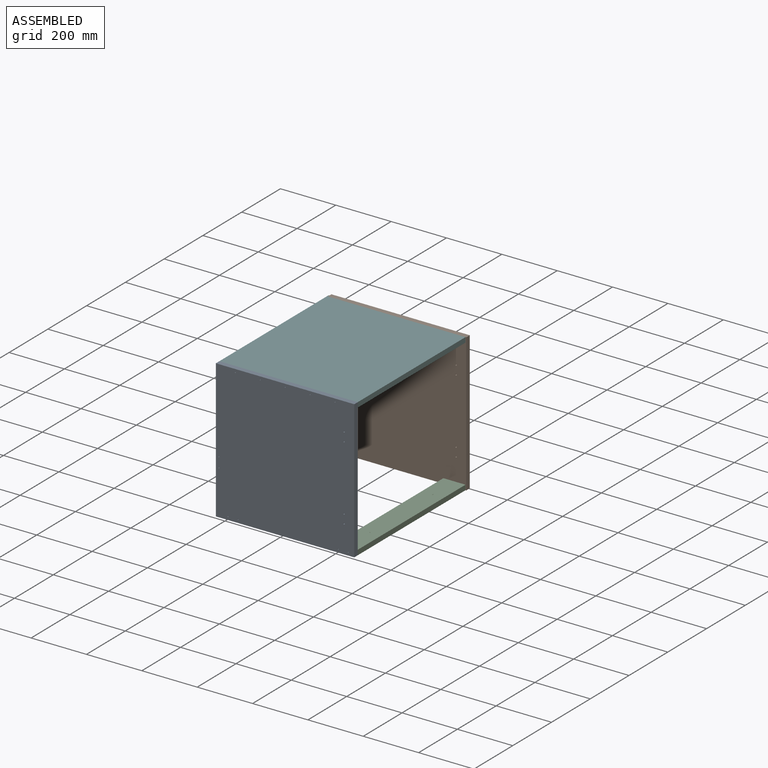
[diagram: assembled view]
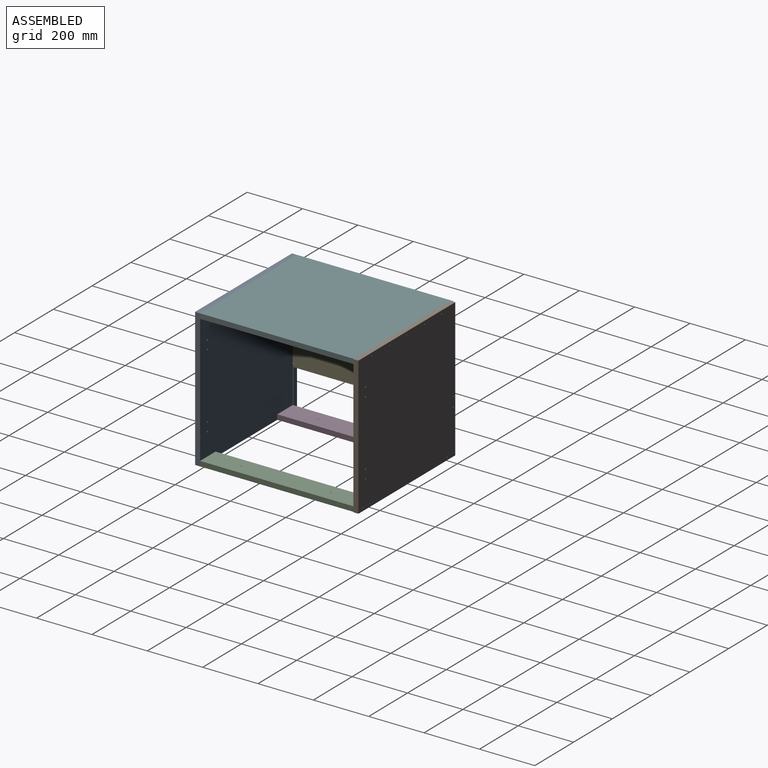
[diagram: assembled view, second angle]
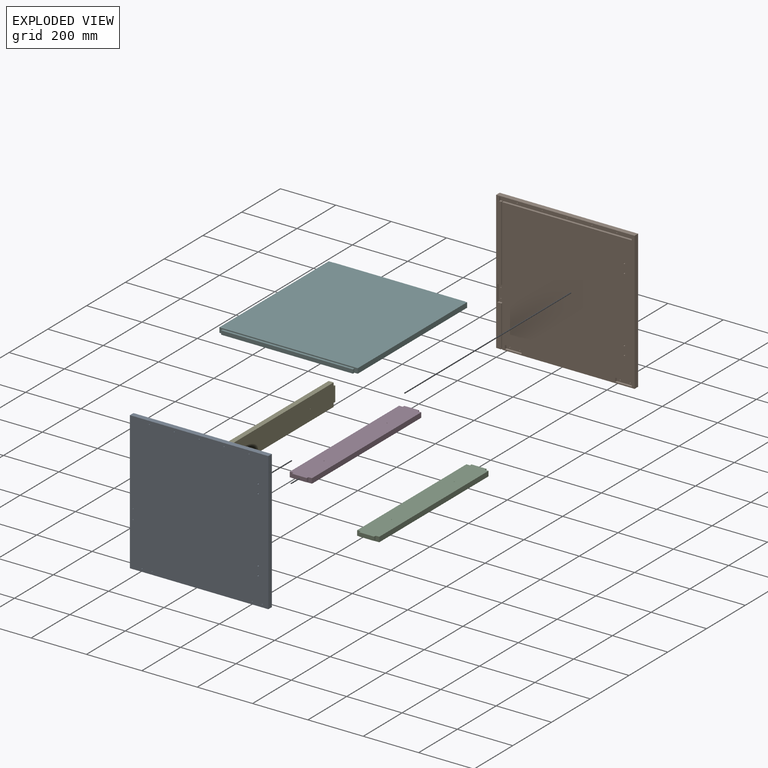
[diagram: exploded view]
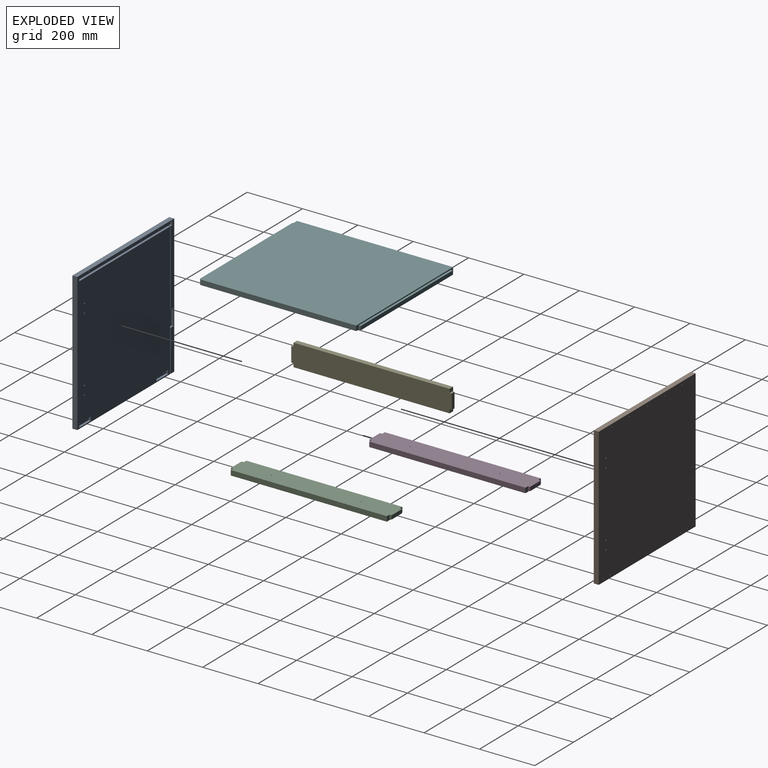
[diagram: exploded view, second angle]
ASSEMBLY  parts=6 mates=5
PART A: 43 faces, bbox 18x500x500 mm
  f0: plane 496x486mm, normal (1,0,0), area 9238.9mm2, adj f3,f6,f7,f8,f9,f10,f11,f21
  f1: plane 60x14mm, normal (1,0,0), area 823.9mm2, adj f12,f13,f26,f27,f28,f41
  f2: plane 60x14mm, normal (1,0,0), area 823.9mm2, adj f14,f15,f23,f24,f25,f40
  f3: plane 500x18mm, normal (0,0,1), area 8971.2mm2, adj f0,f4,f20,f22,f29,f39,f42
  f4: plane 500x18mm, normal (0,-1,0), area 9000mm2, adj f3,f5,f22,f42
  f5: plane 500x18mm, normal (0,0,-1), area 9000mm2, adj f4,f20,f22,f42
  f6: cylinder r=1.6mm len=10mm, axis (1,0,0), area 100.5mm2, adj f0,f22
  f7: cylinder r=1.6mm len=10mm, axis (1,0,0), area 100.5mm2, adj f0,f22
  f8: cylinder r=1.6mm len=10mm, axis (1,0,0), area 100.5mm2, adj f0,f22
  f9: cylinder r=1.6mm len=10mm, axis (1,0,0), area 100.5mm2, adj f0,f22
  f10: cylinder r=1.6mm len=10mm, axis (1,0,0), area 100.5mm2, adj f0,f22
  f11: cylinder r=1.6mm len=10mm, axis (1,0,0), area 100.5mm2, adj f0,f22
  f12: cylinder r=1.6mm len=10mm, axis (1,0,0), area 100.5mm2, adj f1,f22
  f13: cylinder r=1.6mm len=10mm, axis (1,0,0), area 100.5mm2, adj f1,f22
  f14: cylinder r=1.6mm len=10mm, axis (1,0,0), area 100.5mm2, adj f2,f22
  f15: cylinder r=1.6mm len=10mm, axis (1,0,0), area 100.5mm2, adj f2,f22
  f16: cylinder r=2.3mm len=18mm, axis (1,0,0), area 260.1mm2, adj f22,f42
  f17: cylinder r=2.3mm len=18mm, axis (1,0,0), area 260.1mm2, adj f22,f42
  f18: cylinder r=2.3mm len=18mm, axis (1,0,0), area 260.1mm2, adj f22,f42
  f19: cylinder r=2.3mm len=18mm, axis (1,0,0), area 260.1mm2, adj f22,f42
  f20: plane 500x18mm, normal (0,1,0), area 9000mm2, adj f3,f5,f22,f42
  f21: cylinder r=1.6mm len=10mm, axis (1,0,0), area 100.5mm2, adj f0,f22
  f22: plane 500x500mm, normal (-1,0,0), area 249845.1mm2, adj f3,f4,f5,f6,f7,f8,f9,f10
  f23: plane 14x8mm, normal (0,1,0), area 112mm2, adj f2,f24,f40,f42
  f24: plane 60x8mm, normal (0,0,-1), area 480mm2, adj f2,f23,f25,f42
  f25: plane 14x8mm, normal (0,-1,0), area 112mm2, adj f2,f24,f40,f42
  f26: plane 14x8mm, normal (0,1,0), area 112mm2, adj f1,f27,f41,f42
  f27: plane 60x8mm, normal (0,0,-1), area 480mm2, adj f1,f26,f28,f42
  f28: plane 14x8mm, normal (0,-1,0), area 112mm2, adj f1,f27,f41,f42
  f29: plane 482x8mm, normal (0,-1,0), area 3856mm2, adj f0,f3,f30,f42
  f30: plane 468.4x8mm, normal (0,0,-1), area 3747.2mm2, adj f0,f29,f31,f42
  f31: plane 14x8mm, normal (0,-1,0), area 112mm2, adj f0,f30,f32,f42
  f32: plane 480x8mm, normal (0,0,1), area 3840mm2, adj f0,f31,f33,f42
  f33: plane 14x8mm, normal (0,1,0), area 112mm2, adj f0,f32,f34,f42
  f34: plane 8x8mm, normal (0,0,-1), area 64mm2, adj f0,f33,f35,f42
  f35: plane 272x8mm, normal (0,1,0), area 2176mm2, adj f0,f34,f36,f42
  f36: plane 14x8mm, normal (0,0,1), area 112mm2, adj f0,f35,f37,f42
  f37: plane 60x8mm, normal (0,1,0), area 480mm2, adj f0,f36,f38,f42
  f38: plane 14x8mm, normal (0,0,-1), area 112mm2, adj f0,f37,f39,f42
  f39: plane 150x8mm, normal (0,1,0), area 1200mm2, adj f0,f3,f38,f42
  f40: plane 60x8mm, normal (0,0,1), area 480mm2, adj f2,f23,f25,f42
  f41: plane 60x8mm, normal (0,0,1), area 480mm2, adj f1,f26,f28,f42
  f42: plane 500x500mm, normal (1,0,0), area 238958.3mm2, adj f3,f4,f5,f16,f17,f18,f19,f20
PART B: 43 faces, bbox 18x500x500 mm
  f0: plane 496x486mm, normal (1,0,0), area 9238.9mm2, adj f3,f6,f7,f8,f9,f10,f11,f21
  f1: plane 60x14mm, normal (1,0,0), area 823.9mm2, adj f12,f13,f26,f27,f28,f41
  f2: plane 60x14mm, normal (1,0,0), area 823.9mm2, adj f14,f15,f23,f24,f25,f40
  f3: plane 500x18mm, normal (0,0,-1), area 8971.2mm2, adj f0,f4,f20,f22,f29,f39,f42
  f4: plane 500x18mm, normal (0,-1,0), area 9000mm2, adj f3,f5,f22,f42
  f5: plane 500x18mm, normal (0,0,1), area 9000mm2, adj f4,f20,f22,f42
  f6: cylinder r=1.6mm len=10mm, axis (1,0,0), area 100.5mm2, adj f0,f22
  f7: cylinder r=1.6mm len=10mm, axis (1,0,0), area 100.5mm2, adj f0,f22
  f8: cylinder r=1.6mm len=10mm, axis (1,0,0), area 100.5mm2, adj f0,f22
  f9: cylinder r=1.6mm len=10mm, axis (1,0,0), area 100.5mm2, adj f0,f22
  f10: cylinder r=1.6mm len=10mm, axis (1,0,0), area 100.5mm2, adj f0,f22
  f11: cylinder r=1.6mm len=10mm, axis (1,0,0), area 100.5mm2, adj f0,f22
  f12: cylinder r=1.6mm len=10mm, axis (1,0,0), area 100.5mm2, adj f1,f22
  f13: cylinder r=1.6mm len=10mm, axis (1,0,0), area 100.5mm2, adj f1,f22
  f14: cylinder r=1.6mm len=10mm, axis (1,0,0), area 100.5mm2, adj f2,f22
  f15: cylinder r=1.6mm len=10mm, axis (1,0,0), area 100.5mm2, adj f2,f22
  f16: cylinder r=2.3mm len=18mm, axis (1,0,0), area 260.1mm2, adj f22,f42
  f17: cylinder r=2.3mm len=18mm, axis (1,0,0), area 260.1mm2, adj f22,f42
  f18: cylinder r=2.3mm len=18mm, axis (1,0,0), area 260.1mm2, adj f22,f42
  f19: cylinder r=2.3mm len=18mm, axis (1,0,0), area 260.1mm2, adj f22,f42
  f20: plane 500x18mm, normal (0,1,0), area 9000mm2, adj f3,f5,f22,f42
  f21: cylinder r=1.6mm len=10mm, axis (1,0,0), area 100.5mm2, adj f0,f22
  f22: plane 500x500mm, normal (-1,0,0), area 249845.1mm2, adj f3,f4,f5,f6,f7,f8,f9,f10
  f23: plane 14x8mm, normal (0,1,0), area 112mm2, adj f2,f24,f40,f42
  f24: plane 60x8mm, normal (0,0,1), area 480mm2, adj f2,f23,f25,f42
  f25: plane 14x8mm, normal (0,-1,0), area 112mm2, adj f2,f24,f40,f42
  f26: plane 14x8mm, normal (0,1,0), area 112mm2, adj f1,f27,f41,f42
  f27: plane 60x8mm, normal (0,0,1), area 480mm2, adj f1,f26,f28,f42
  f28: plane 14x8mm, normal (0,-1,0), area 112mm2, adj f1,f27,f41,f42
  f29: plane 482x8mm, normal (0,-1,0), area 3856mm2, adj f0,f3,f30,f42
  f30: plane 468.4x8mm, normal (0,0,1), area 3747.2mm2, adj f0,f29,f31,f42
  f31: plane 14x8mm, normal (0,-1,0), area 112mm2, adj f0,f30,f32,f42
  f32: plane 480x8mm, normal (0,0,-1), area 3840mm2, adj f0,f31,f33,f42
  f33: plane 14x8mm, normal (0,1,0), area 112mm2, adj f0,f32,f34,f42
  f34: plane 8x8mm, normal (0,0,1), area 64mm2, adj f0,f33,f35,f42
  f35: plane 272x8mm, normal (0,1,0), area 2176mm2, adj f0,f34,f36,f42
  f36: plane 14x8mm, normal (0,0,-1), area 112mm2, adj f0,f35,f37,f42
  f37: plane 60x8mm, normal (0,1,0), area 480mm2, adj f0,f36,f38,f42
  f38: plane 14x8mm, normal (0,0,1), area 112mm2, adj f0,f37,f39,f42
  f39: plane 150x8mm, normal (0,1,0), area 1200mm2, adj f0,f3,f38,f42
  f40: plane 60x8mm, normal (0,0,-1), area 480mm2, adj f2,f23,f25,f42
  f41: plane 60x8mm, normal (0,0,-1), area 480mm2, adj f1,f26,f28,f42
  f42: plane 500x500mm, normal (1,0,0), area 238958.3mm2, adj f3,f4,f5,f16,f17,f18,f19,f20
PART C: 16 faces, bbox 18x580x80 mm
  f0: plane 54x8mm, normal (-1,0,0), area 432mm2, adj f1,f2,f3,f4
  f1: plane 14x8mm, normal (0,0,-1), area 112mm2, adj f0,f2,f4,f13
  f2: plane 54x14mm, normal (0,1,0), area 756mm2, adj f0,f1,f3,f13
  f3: plane 14x8mm, normal (0,0,1), area 112mm2, adj f0,f2,f4,f13
  f4: plane 80x18mm, normal (0,1,0), area 684mm2, adj f0,f1,f3,f5,f11,f13,f15
  f5: plane 564x18mm, normal (0,0,1), area 10152mm2, adj f4,f9,f13,f15
  f6: plane 14x8mm, normal (0,0,1), area 112mm2, adj f7,f9,f13,f14
  f7: plane 54x14mm, normal (0,-1,0), area 756mm2, adj f6,f8,f13,f14
  f8: plane 14x8mm, normal (0,0,-1), area 112mm2, adj f7,f9,f13,f14
  f9: plane 80x18mm, normal (0,-1,0), area 684mm2, adj f5,f6,f8,f11,f13,f14,f15
  f10: cylinder r=1.6mm len=18mm, axis (-1,0,0), area 181mm2, adj f13,f15
  f11: plane 564x18mm, normal (0,0,-1), area 10152mm2, adj f4,f9,f13,f15
  f12: cylinder r=1.6mm len=18mm, axis (-1,0,0), area 181mm2, adj f13,f15
  f13: plane 580x80mm, normal (1,0,0), area 45967.9mm2, adj f1,f2,f3,f4,f5,f6,f7,f8
  f14: plane 54x8mm, normal (-1,0,0), area 432mm2, adj f6,f7,f8,f9
  f15: plane 564x80mm, normal (-1,0,0), area 45103.9mm2, adj f4,f5,f9,f10,f11,f12
PART D: same geometry as C
PART E: same geometry as C
PART F: 14 faces, bbox 18x580x500 mm
  f0: plane 500x18mm, normal (0,1,0), area 2336mm2, adj f1,f3,f4,f6,f8,f12,f13
  f1: plane 564x18mm, normal (0,0,1), area 10152mm2, adj f0,f2,f4,f12
  f2: plane 500x18mm, normal (0,-1,0), area 2336mm2, adj f1,f3,f4,f5,f9,f11,f12
  f3: plane 564x18mm, normal (0,0,-1), area 10152mm2, adj f0,f2,f4,f12
  f4: plane 564x500mm, normal (-1,0,0), area 282000mm2, adj f0,f1,f2,f3
  f5: plane 476x8mm, normal (-1,0,0), area 3808mm2, adj f2,f9,f10,f11
  f6: plane 14x8mm, normal (0,0,-1), area 112mm2, adj f0,f7,f12,f13
  f7: plane 476x14mm, normal (0,1,0), area 6664mm2, adj f6,f8,f12,f13
  f8: plane 14x8mm, normal (0,0,1), area 112mm2, adj f0,f7,f12,f13
  f9: plane 14x8mm, normal (0,0,1), area 112mm2, adj f2,f5,f10,f12
  f10: plane 476x14mm, normal (0,-1,0), area 6664mm2, adj f5,f9,f11,f12
  f11: plane 14x8mm, normal (0,0,-1), area 112mm2, adj f2,f5,f10,f12
  f12: plane 580x500mm, normal (1,0,0), area 289616mm2, adj f0,f1,f2,f3,f6,f7,f8,f9
  f13: plane 476x8mm, normal (-1,0,0), area 3808mm2, adj f0,f6,f7,f8
PLACE A rot(axis=(0.71,0.71,0),180deg) t=(-102.86,-403.64,554.85)mm
PLACE B rot(axis=(0,0,-1),90deg) t=(-100.08,168.36,1511.22)mm
PLACE C rot(axis=(0,-1,0),90deg) t=(505.03,-161.16,537.04)mm
PLACE D rot(axis=(0,-1,0),90deg) t=(106.63,-161.16,537.04)mm
PLACE E t=(-419.11,-161.16,244.9)mm
PLACE F rot(axis=(0.71,0,-0.71),180deg) t=(-380.59,668.91,1029.04)mm
MATE fastened E.f4 <-> B.f0  axis (0,1,0) through (-416.32,168.36,713.04)mm
MATE fastened A.f2 <-> D.f7  axis (0,1,0) through (-361.51,-403.64,544.04)mm
MATE fastened A.f1 <-> C.f7  axis (0,1,0) through (36.89,-403.64,544.04)mm
MATE fastened A.f0 <-> E.f7  axis (0,1,0) through (-419.11,-403.64,713.04)mm
MATE fastened F.f7 <-> A.f7  axis (0,-1,0) through (-173.11,-403.64,1022.04)mm
